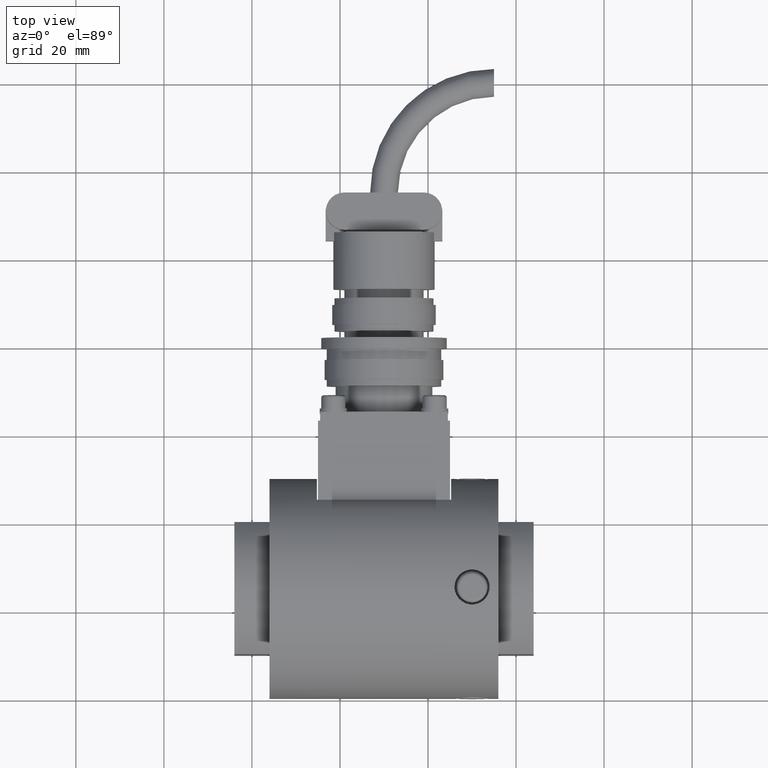
[diagram: clean part render]
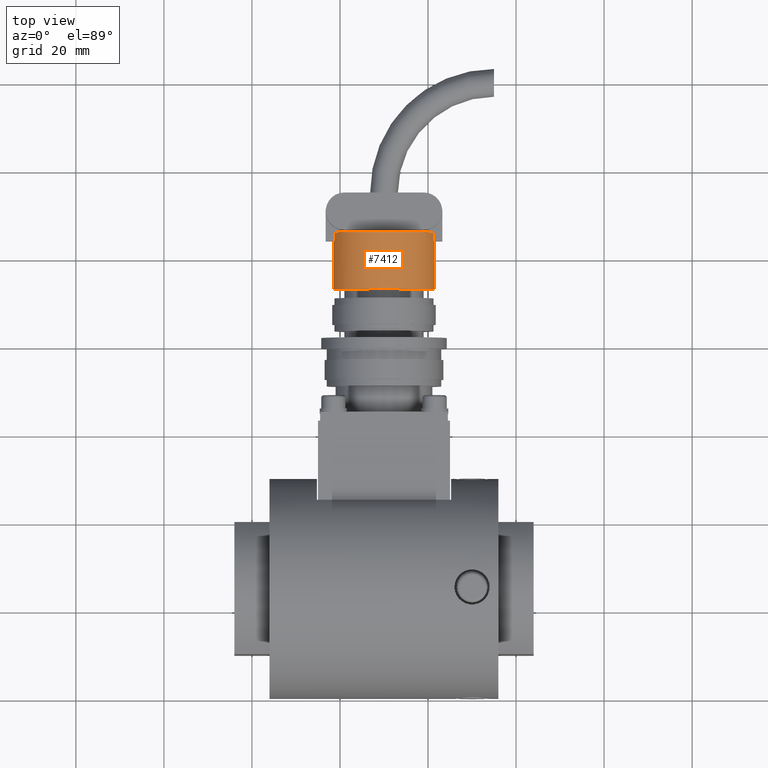
[diagram: same view with one face highlighted and labeled with its STEP entity id]
A machine part, top view. The second image highlights one B-rep face of the part: STEP entity #7412.
In plain terms, the highlighted cylindrical surface (partial cylindrical patch) has radius 11.5 mm, axis along (-0, -1, 0).
Its self-contained STEP definition (entity closure, byte-faithful):
#6378=CARTESIAN_POINT('',(-23.275000000000119,0.750000000000057,0.0));
#6379=VERTEX_POINT('',#6378);
#6380=CARTESIAN_POINT('',(-23.275000000000119,-10.249999999999957,0.0));
#6381=VERTEX_POINT('',#6380);
#6382=CARTESIAN_POINT('',(-23.275000000000119,0.750000000000057,0.0));
#6383=DIRECTION('',(0.0,-1.0,0.0));
#6384=VECTOR('',#6383,11.000000000000014);
#6385=LINE('',#6382,#6384);
#6386=EDGE_CURVE('',#6379,#6381,#6385,.T.);
#6388=CARTESIAN_POINT('',(-0.275000000000173,0.750000000000060,-1.408297E-015));
#6389=VERTEX_POINT('',#6388);
#6397=CARTESIAN_POINT('',(-0.275000000000173,-10.249999999999932,-1.408297E-015));
#6398=VERTEX_POINT('',#6397);
#6399=CARTESIAN_POINT('',(-0.275000000000173,0.750000000000060,-1.408297E-015));
#6400=DIRECTION('',(0.0,-1.0,0.0));
#6401=VECTOR('',#6400,10.999999999999993);
#6402=LINE('',#6399,#6401);
#6403=EDGE_CURVE('',#6389,#6398,#6402,.T.);
#7355=CARTESIAN_POINT('',(-11.775000000000146,-5.749999999999943,0.0));
#7356=DIRECTION('',(-1.224606E-016,1.0,0.0));
#7357=DIRECTION('',(-1.0,0.0,0.0));
#7358=AXIS2_PLACEMENT_3D('',#7355,#7356,#7357);
#7359=CYLINDRICAL_SURFACE('',#7358,11.499999999999973);
#7360=ORIENTED_EDGE('',*,*,#6386,.T.);
#7361=CARTESIAN_POINT('',(-23.099751652906242,-10.250000000000069,2.0));
#7362=VERTEX_POINT('',#7361);
#7363=CARTESIAN_POINT('',(-11.775000000000146,-10.249999999999945,0.0));
#7364=DIRECTION('',(0.0,-1.0,0.0));
#7365=DIRECTION('',(-1.0,0.0,0.0));
#7366=AXIS2_PLACEMENT_3D('',#7363,#7364,#7365);
#7367=CIRCLE('',#7366,11.499999999999973);
#7368=EDGE_CURVE('',#7362,#6381,#7367,.T.);
#7369=ORIENTED_EDGE('',*,*,#7368,.F.);
#7370=CARTESIAN_POINT('',(-23.099751652906242,-12.249999999999945,2.0));
#7371=VERTEX_POINT('',#7370);
#7372=CARTESIAN_POINT('',(-23.099751652906242,-12.249999999999945,2.0));
#7373=DIRECTION('',(0.0,1.0,0.0));
#7374=VECTOR('',#7373,1.999999999999876);
#7375=LINE('',#7372,#7374);
#7376=EDGE_CURVE('',#7371,#7362,#7375,.T.);
#7377=ORIENTED_EDGE('',*,*,#7376,.F.);
#7378=CARTESIAN_POINT('',(-0.450248347094044,-12.249999999999941,2.0));
#7379=VERTEX_POINT('',#7378);
#7380=CARTESIAN_POINT('',(-11.775000000000144,-12.249999999999943,0.0));
#7381=DIRECTION('',(0.0,1.0,0.0));
#7382=DIRECTION('',(-1.0,0.0,0.0));
#7383=AXIS2_PLACEMENT_3D('',#7380,#7381,#7382);
#7384=CIRCLE('',#7383,11.499999999999975);
#7385=EDGE_CURVE('',#7371,#7379,#7384,.T.);
#7386=ORIENTED_EDGE('',*,*,#7385,.T.);
#7387=CARTESIAN_POINT('',(-0.450248347094049,-10.250000000000044,2.0));
#7388=VERTEX_POINT('',#7387);
#7389=CARTESIAN_POINT('',(-0.450248347094049,-10.250000000000044,2.0));
#7390=DIRECTION('',(0.0,-1.0,0.0));
#7391=VECTOR('',#7390,1.999999999999897);
#7392=LINE('',#7389,#7391);
#7393=EDGE_CURVE('',#7388,#7379,#7392,.T.);
#7394=ORIENTED_EDGE('',*,*,#7393,.F.);
#7395=CARTESIAN_POINT('',(-11.775000000000146,-10.249999999999945,0.0));
#7396=DIRECTION('',(0.0,-1.0,0.0));
#7397=DIRECTION('',(-1.0,0.0,0.0));
#7398=AXIS2_PLACEMENT_3D('',#7395,#7396,#7397);
#7399=CIRCLE('',#7398,11.499999999999973);
#7400=EDGE_CURVE('',#6398,#7388,#7399,.T.);
#7401=ORIENTED_EDGE('',*,*,#7400,.F.);
#7402=ORIENTED_EDGE('',*,*,#6403,.F.);
#7403=CARTESIAN_POINT('',(-11.775000000000146,0.750000000000057,0.0));
#7404=DIRECTION('',(0.0,1.0,0.0));
#7405=DIRECTION('',(-1.0,0.0,0.0));
#7406=AXIS2_PLACEMENT_3D('',#7403,#7404,#7405);
#7407=CIRCLE('',#7406,11.499999999999973);
#7408=EDGE_CURVE('',#6379,#6389,#7407,.T.);
#7409=ORIENTED_EDGE('',*,*,#7408,.F.);
#7410=EDGE_LOOP('',(#7360,#7369,#7377,#7386,#7394,#7401,#7402,#7409));
#7411=FACE_OUTER_BOUND('',#7410,.T.);
#7412=ADVANCED_FACE('',(#7411),#7359,.T.);